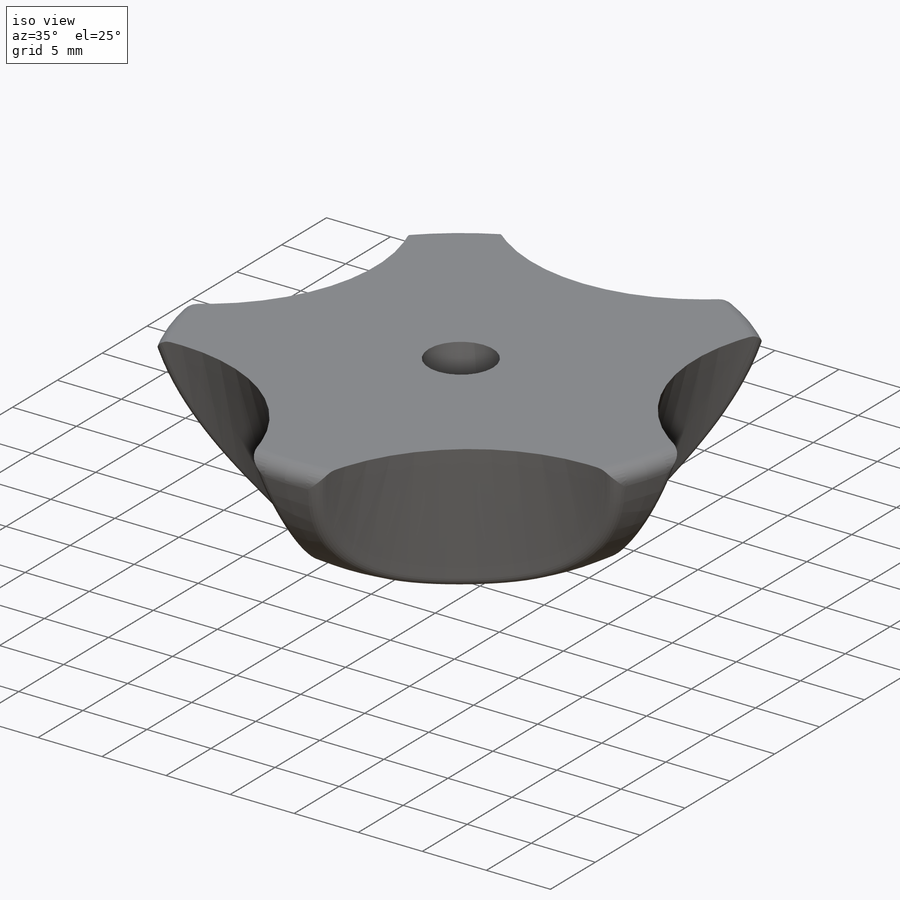
[diagram: iso view]
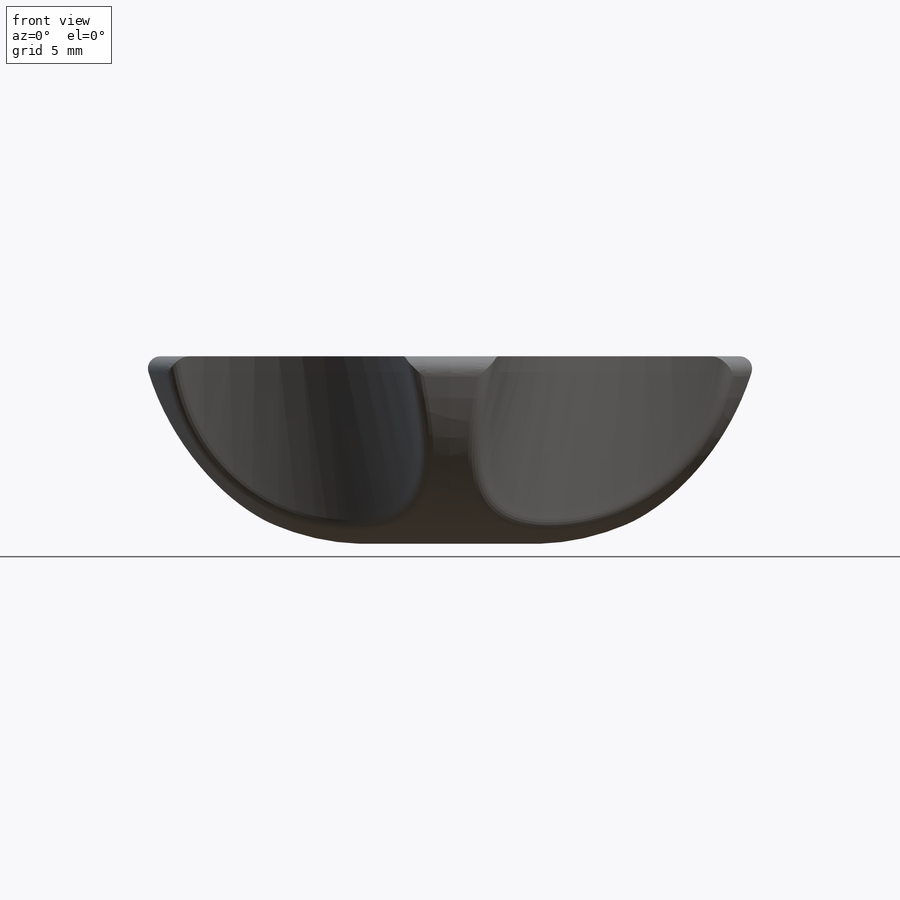
[diagram: front view]
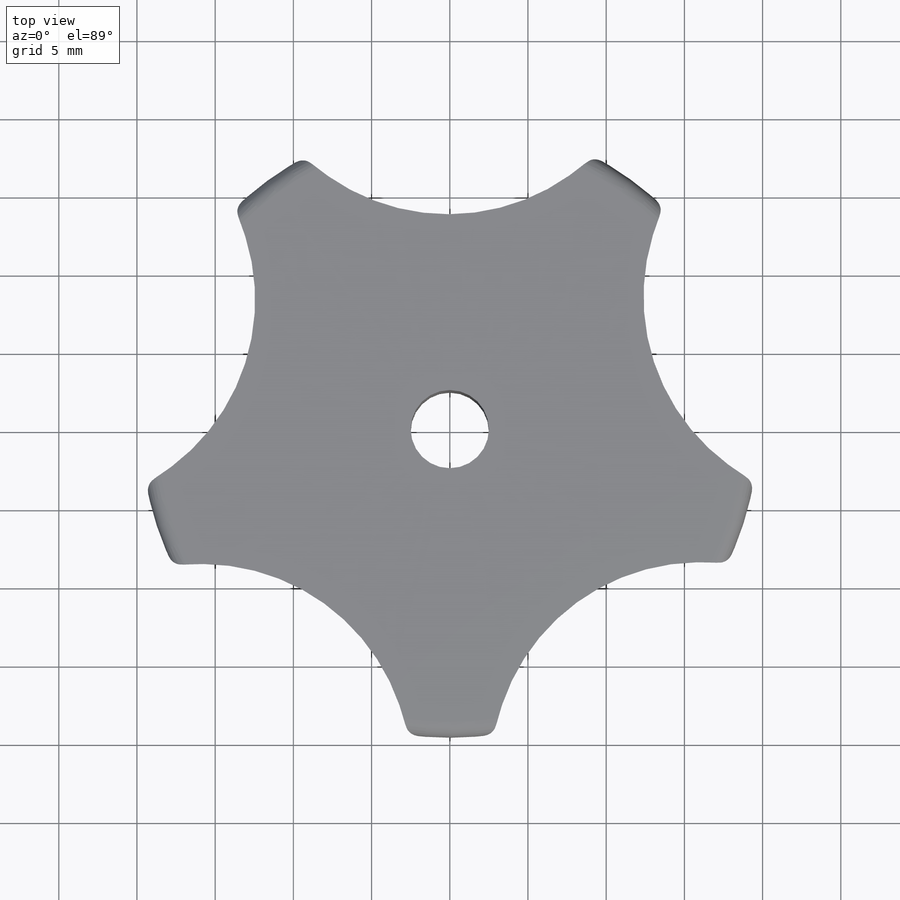
[diagram: top view]
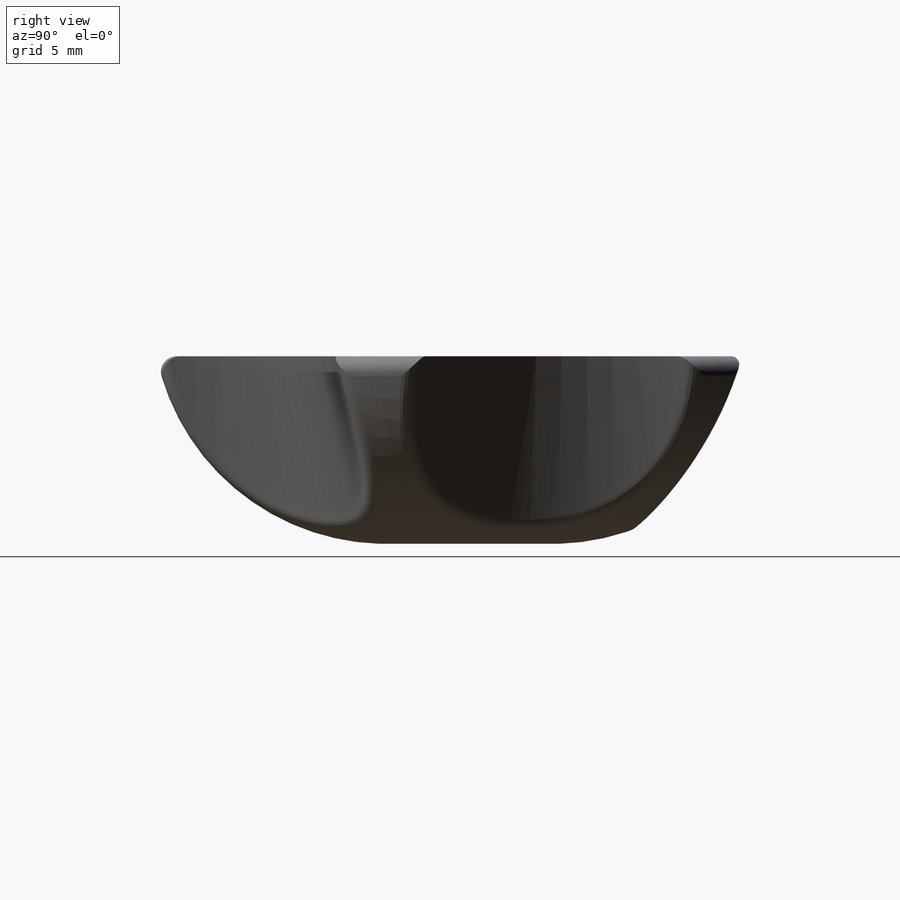
[diagram: right view]
SOLIDWORKS PART (.sldprt)
format: sldprt  version: not decoded by parser v0  size: 317,952 bytes
history: native  units: mm
features: plane x3, sketch x3, fillet x2, cut_extrude x2, material x1, extrude x1, pattern_circular x1 (+9 scaffold rows collapsed)
feature tree (22):
  scaffold x9  (default folders/planes/origin — collapsed)
  material  "Matériau <non spécifié>"
  plane  "Plan de face"
  plane  "Plan de dessus"
  plane  "Plan de droite"
  sketch  "Esquisse1"  dims[D1=5.0mm D2=40.0mm]
  extrude  "Boss.-Extru.1"  Depth=12mm
  fillet  "Congé7"  Radius=15mm
  sketch  "Esquisse2"  dims[D1=~9.47148mm D2=18.84mm]
  cut_extrude  "Enlèv. mat.-Extru.1"  [1 undecoded]
  pattern_circular  "Répétition circulaire1"  Count=5  [1 undecoded]
  sketch  "Esquisse3"  dims[D1=0.0mm]
  cut_extrude  "Enlèv. mat.-Extru.2"  Depth=2mm
  fillet  "Congé9"  Radius=1mm
decode coverage: 8 of 9 modeling features carry decoded parameters
note: ~ marks probable driven/reference dimensions
note: 2 parameter values undecoded
note: suppression state not decoded; provenance and decode notes live in map.json
